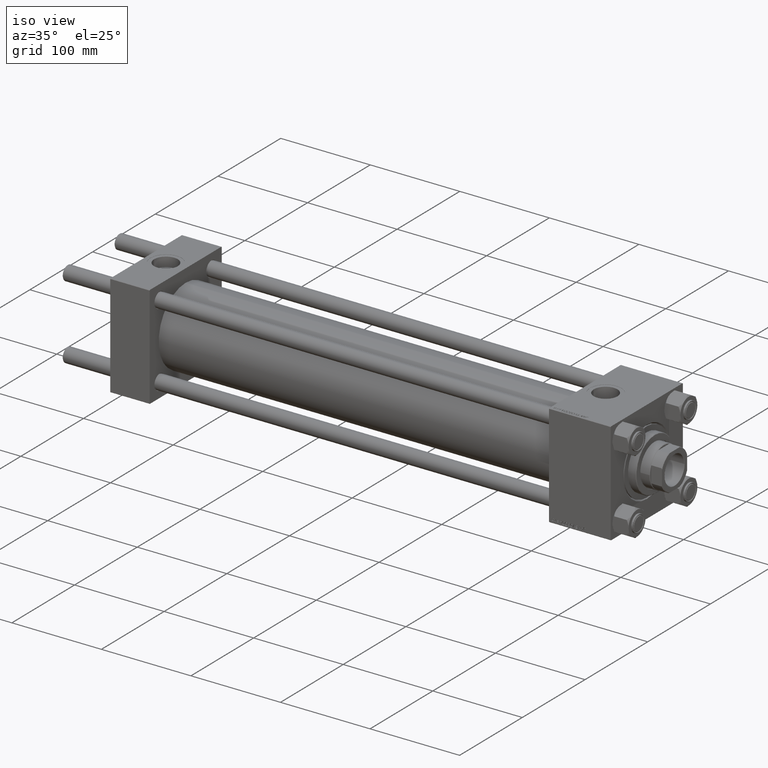
[diagram: clean part render]
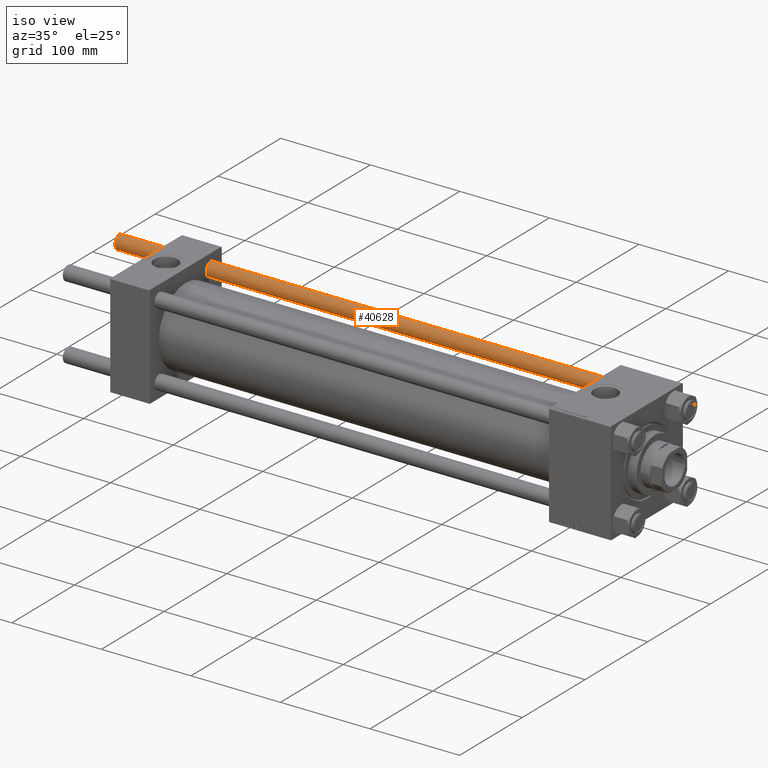
[diagram: same view with one face highlighted and labeled with its STEP entity id]
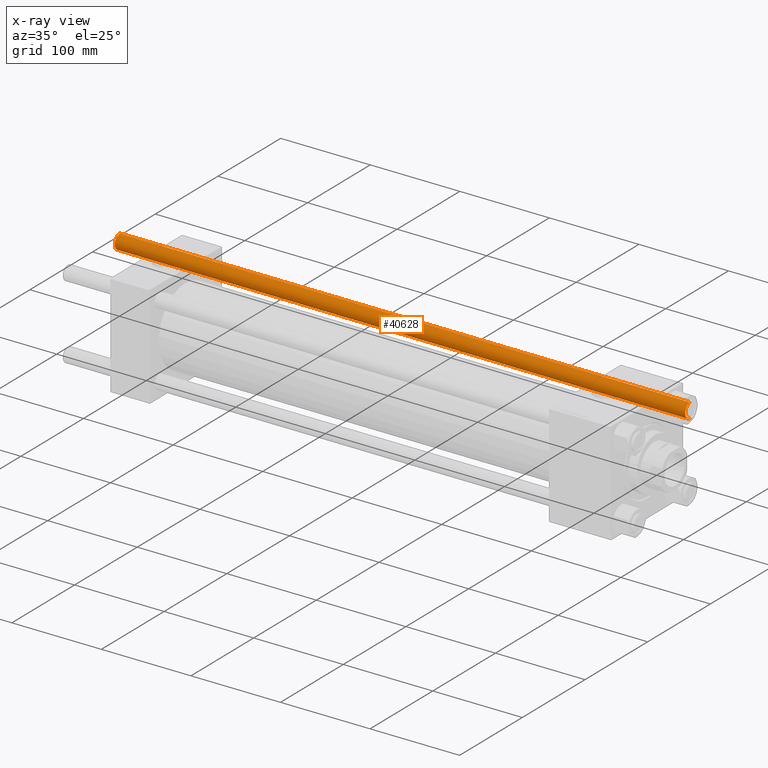
[diagram: x-ray of the same camera — body ghosted, the highlighted face saturated]
A machine part, iso view. The second image highlights one B-rep face of the part: STEP entity #40628.
The next image is the same camera in x-ray: the body ghosted, the highlighted face saturated — about 0% of this face is hidden behind the body in this view.
In plain terms, the highlighted cylindrical surface (edge-blend (fillet) strip) has radius 8 mm, axis along (-1, -0, -0).
Its self-contained STEP definition (entity closure, byte-faithful):
#1569 = VERTEX_POINT ( 'NONE', #27246 ) ;
#1848 = EDGE_CURVE ( 'NONE', #8362, #19886, #35754, .T. ) ;
#2156 = DIRECTION ( 'NONE',  ( -1.000000000000000000, 0.000000000000000000, 0.000000000000000000 ) ) ;
#2238 = EDGE_LOOP ( 'NONE', ( #28884, #17983, #25306, #10342 ) ) ;
#2645 = EDGE_CURVE ( 'NONE', #39628, #8362, #48407, .T. ) ;
#3324 = DIRECTION ( 'NONE',  ( -0.000000000000000000, -0.000000000000000000, 1.000000000000000000 ) ) ;
#5967 = CARTESIAN_POINT ( 'NONE',  ( 0.000000000000000000, 0.000000000000000000, 638.0000000000000000 ) ) ;
#8362 = VERTEX_POINT ( 'NONE', #11159 ) ;
#8788 = CARTESIAN_POINT ( 'NONE',  ( 8.000000000000000000, 9.797174393178825657E-16, 637.5000000000002274 ) ) ;
#9798 = FACE_OUTER_BOUND ( 'NONE', #2238, .T. ) ;
#10342 = ORIENTED_EDGE ( 'NONE', *, *, #37194, .T. ) ;
#10472 = CARTESIAN_POINT ( 'NONE',  ( 0.000000000000000000, 0.000000000000000000, 637.5000000000002274 ) ) ;
#11159 = CARTESIAN_POINT ( 'NONE',  ( -8.000000000000000000, 0.000000000000000000, 637.5000000000002274 ) ) ;
#11810 = LINE ( 'NONE', #27043, #31775 ) ;
#15004 = CARTESIAN_POINT ( 'NONE',  ( 0.000000000000000000, 0.000000000000000000, 0.4999999999998339106 ) ) ;
#17983 = ORIENTED_EDGE ( 'NONE', *, *, #2645, .T. ) ;
#19886 = VERTEX_POINT ( 'NONE', #22292 ) ;
#21462 = DIRECTION ( 'NONE',  ( -0.000000000000000000, -0.000000000000000000, -1.000000000000000000 ) ) ;
#21624 = VECTOR ( 'NONE', #31938, 1000.000000000000000 ) ;
#22143 = CIRCLE ( 'NONE', #27839, 8.000000000000000000 ) ;
#22292 = CARTESIAN_POINT ( 'NONE',  ( -8.000000000000000000, 0.000000000000000000, 0.4999999999998339106 ) ) ;
#22373 = DIRECTION ( 'NONE',  ( 1.000000000000000000, 0.000000000000000000, 0.000000000000000000 ) ) ;
#25284 = CYLINDRICAL_SURFACE ( 'NONE', #44093, 8.000000000000000000 ) ;
#25306 = ORIENTED_EDGE ( 'NONE', *, *, #1848, .T. ) ;
#27043 = CARTESIAN_POINT ( 'NONE',  ( 8.000000000000000000, 9.797174393178825657E-16, 638.0000000000000000 ) ) ;
#27246 = CARTESIAN_POINT ( 'NONE',  ( 8.000000000000000000, 9.797174393178825657E-16, 0.4999999999998339106 ) ) ;
#27839 = AXIS2_PLACEMENT_3D ( 'NONE', #15004, #3324, #22373 ) ;
#28884 = ORIENTED_EDGE ( 'NONE', *, *, #34091, .F. ) ;
#30489 = DIRECTION ( 'NONE',  ( 0.000000000000000000, 0.000000000000000000, -1.000000000000000000 ) ) ;
#31775 = VECTOR ( 'NONE', #35161, 1000.000000000000000 ) ;
#31938 = DIRECTION ( 'NONE',  ( -0.000000000000000000, -0.000000000000000000, -1.000000000000000000 ) ) ;
#34091 = EDGE_CURVE ( 'NONE', #39628, #1569, #11810, .T. ) ;
#35161 = DIRECTION ( 'NONE',  ( -0.000000000000000000, -0.000000000000000000, -1.000000000000000000 ) ) ;
#35439 = AXIS2_PLACEMENT_3D ( 'NONE', #10472, #30489, #45500 ) ;
#35754 = LINE ( 'NONE', #43362, #21624 ) ;
#37194 = EDGE_CURVE ( 'NONE', #19886, #1569, #22143, .T. ) ;
#39628 = VERTEX_POINT ( 'NONE', #8788 ) ;
#40628 = ADVANCED_FACE ( 'NONE', ( #9798 ), #25284, .T. ) ;
#43362 = CARTESIAN_POINT ( 'NONE',  ( -8.000000000000000000, 0.000000000000000000, 638.0000000000000000 ) ) ;
#44093 = AXIS2_PLACEMENT_3D ( 'NONE', #5967, #21462, #2156 ) ;
#45500 = DIRECTION ( 'NONE',  ( 1.000000000000000000, 0.000000000000000000, 0.000000000000000000 ) ) ;
#48407 = CIRCLE ( 'NONE', #35439, 8.000000000000000000 ) ;